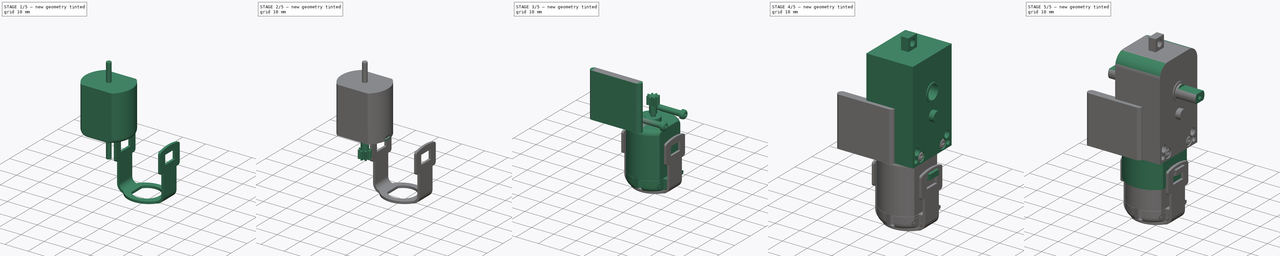
[diagram: build sequence overview — one tinted view per stage of 5, left to right]
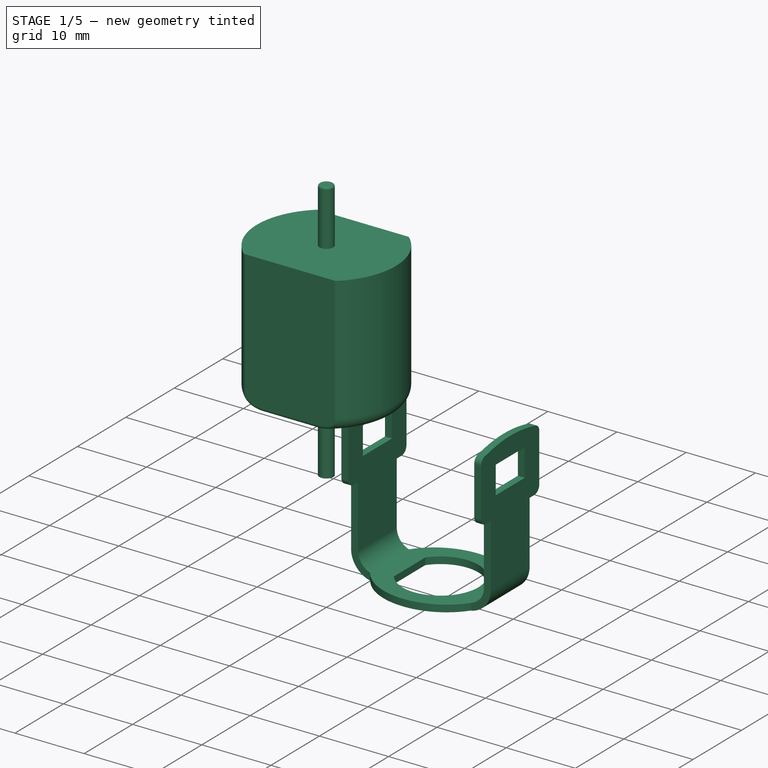
[diagram: stage 1 of 5 — iso view after this stage's code; geometry added in this stage tinted green]
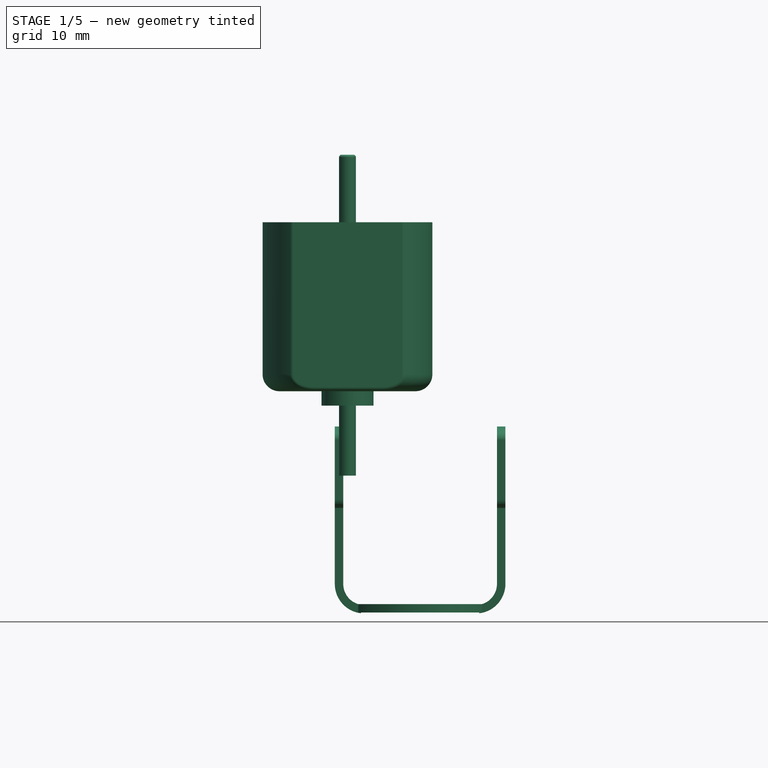
[diagram: stage 1 of 5 — front view after this stage's code; geometry added in this stage tinted green]
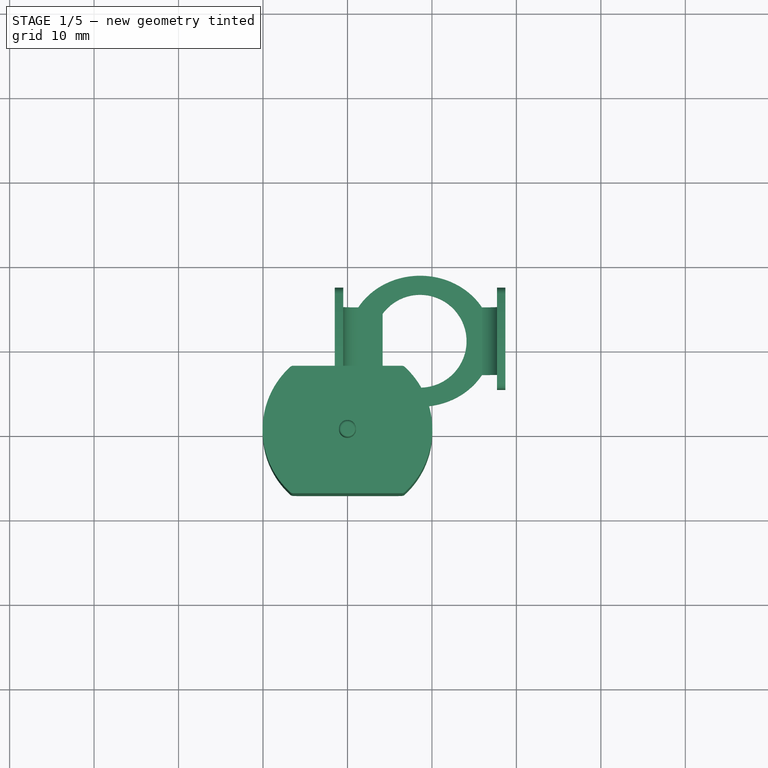
[diagram: stage 1 of 5 — top view after this stage's code; geometry added in this stage tinted green]
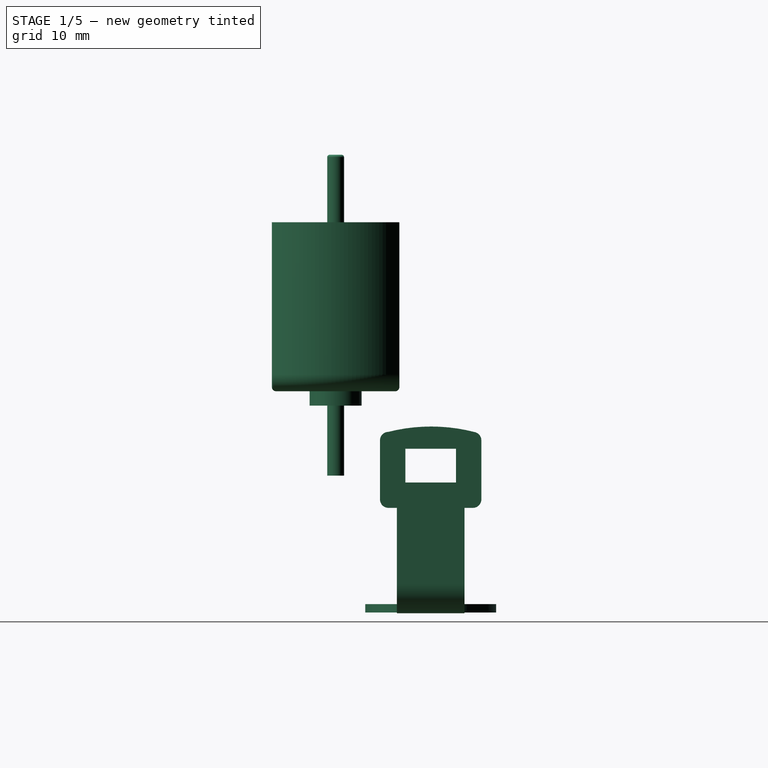
[diagram: stage 1 of 5 — right view after this stage's code; geometry added in this stage tinted green]
FCSTD DOCUMENT  (FreeCAD 0.15R4671 (Git))
Label: MontajePlasticGearMotorDC
License: CreativeCommons Attribution-ShareAlike
LicenseURL: http://creativecommons.org/licenses/by-sa/4.0/
objects: Part::Cut×35, Part::Box×24, Part::Cylinder×24, Part::MultiFuse×16, Part::FeaturePython×10, Sketcher::SketchObject×9, PartDesign::Pad×8, Part::Fillet×7, App::DocumentObjectGroup×5, Part::Thickness×3, Part::Mirroring×1, Part::Loft×1, Part::Part2DObjectPython×1
note: 147 computed .brp shape members not serialized (recipe doc carries the construction recipe); baked Part::Feature solids carry a one-line shape summary decoded from their .brp

FEATURE [Part::Cylinder] Cylinder017  label="Cilindro015"
  Angle = 360
  Height = 20
  Radius = 10.05
FEATURE [Part::Box] Box011  label="Cubo011"
  Height = 30
  Length = 30
  Placement = pos=(-15,7.55,-3) rot=(0,0,1;0rad)
  Width = 10
FEATURE [Part::Box] Box012  label="Cubo012"
  Height = 30
  Length = 30
  Placement = pos=(-15,-17.55,-3) rot=(0,0,1;0rad)
  Width = 10
FEATURE [Part::Fillet] Fillet002
  Base = -> Cylinder017
  Edges = 1 edges r=2: [Edge3]
FEATURE [Part::Cut] Cut019
  Base = -> Fillet002
  Tool = -> Box012
FEATURE [Part::Cut] Cut020  label="CuerpoBase"
  Base = -> Cut019
  Tool = -> Box011
FEATURE [Part::Thickness] Thickness002
  Intersection = false
  Join = 0
  Mode = 0
  Placement = pos=(0,0,24) rot=(1,0,0;3.14159rad)
  SelfIntersection = false
  Value = -0.1
FEATURE [Part::Cylinder] Cylinder021  label="preEje"
  Angle = 360
  Height = 38
  Placement = pos=(0,0,-10) rot=(0,0,1;0rad)
  Radius = 1
FEATURE [Part::Fillet] Fillet005  label="Eje"
  Base = -> Cylinder021
  Edges = 1 edges r=0.3: [Edge1]
FEATURE [Part::MultiFuse] Fusion008
  Shapes = -> [Cut020,Thickness002]
FEATURE [Part::Fillet] Fillet006  label="CuerpoMotor"
  Base = -> Fusion008
  Edges = 10 edges r=0.5: [Edge7,Edge11,Edge12,Edge14,Edge15,Edge16,Edge19,Edge21,Edge24,Edge25]
FEATURE [Part::MultiFuse] Fusion009
  Shapes = -> [Fillet006,Fillet005]
FEATURE [App::DocumentObjectGroup] Grupo005  label="GR_Motor"
  Group = -> [Fusion013]
FEATURE [Sketcher::SketchObject] Sketch006
  sketch-geometry (12):
    g0: LineSegment StartX=-10.1 StartY=0.787419 StartZ=0 EndX=-9.1 EndY=0.787419 EndZ=0
    g1: LineSegment StartX=-9.1 StartY=0.787419 StartZ=0 EndX=-9.1 EndY=-9.21258 EndZ=0
    g2: LineSegment StartX=-6.6 StartY=-11.7126 StartZ=0 EndX=6.6 EndY=-11.7126 EndZ=0
    g3: LineSegment StartX=9.1 StartY=-9.21258 StartZ=0 EndX=9.1 EndY=0.787419 EndZ=0
    g4: LineSegment StartX=9.1 StartY=0.787419 StartZ=0 EndX=10.1 EndY=0.787419 EndZ=0
    g5: LineSegment StartX=10.1 StartY=0.787419 StartZ=0 EndX=10.1 EndY=-9.21258 EndZ=0
    g6: LineSegment StartX=6.6 StartY=-12.7126 StartZ=0 EndX=-6.6 EndY=-12.7126 EndZ=0
    g7: LineSegment StartX=-10.1 StartY=-9.21258 StartZ=0 EndX=-10.1 EndY=0.787419 EndZ=0
    g8: ArcOfCircle CenterX=-6.6 CenterY=-9.21258 CenterZ=0 NormalX=0 NormalY=0 NormalZ=1 Radius=2.5 StartAngle=3.14159 EndAngle=4.71239
    g9: ArcOfCircle CenterX=-6.6 CenterY=-9.21258 CenterZ=0 NormalX=0 NormalY=0 NormalZ=1 Radius=3.5 StartAngle=3.14159 EndAngle=4.71239
    g10: ArcOfCircle CenterX=6.6 CenterY=-9.21258 CenterZ=0 NormalX=0 NormalY=0 NormalZ=1 Radius=2.5 StartAngle=4.71239 EndAngle=6.28319
    g11: ArcOfCircle CenterX=6.6 CenterY=-9.21258 CenterZ=0 NormalX=0 NormalY=0 NormalZ=1 Radius=3.5 StartAngle=4.71239 EndAngle=6.28319
  constraints (31):
    c: Coincident(g0,g1)
    c: Coincident(g3,g4)
    c: Coincident(g4,g5)
    c: Coincident(g7,g0)
    c: Horizontal(g0)
    c: Horizontal(g4)
    c: Vertical(g1)
    c: Vertical(g3)
    c: Parallel(g3,g5)
    c: Parallel(g2,g6)
    c: Parallel(g1,g7)
    c: Equal(g0,g4)
    c: DistanceX(g0) = 1
    c: Equal(g5,g7)
    c: Tangent(g1,g8) = -1.5708
    c: Tangent(g2,g8) = -1.5708
    c: Tangent(g7,g9) = 1.5708
    c: Tangent(g6,g9) = 1.5708
    c: Tangent(g3,g10) = -1.5708
    c: Tangent(g2,g10) = -1.5708
    c: Tangent(g5,g11) = 1.5708
    c: Tangent(g6,g11) = 1.5708
    c: DistanceX(g0,g3) = 18.2
    c: Horizontal(g2)
    c: Radius(g10) = 2.5
    c: Radius(g11) = 3.5
    c: Coincident(g11,g10)
    c: Equal(g10,g8)
    c: Equal(g11,g9)
    c: DistanceY(g0,g6) = -13.5
    c: Symmetric(g0,g3,g-2)
FEATURE [PartDesign::Pad] Pad005  label="Cinta"
  Length = 8
  Length2 = 100
  Sketch = -> Sketch006
  Type = 0
FEATURE [Sketcher::SketchObject] Sketch007
  Placement = pos=(0,0,0) rot=(0.57735,0.57735,0.57735;2.0944rad)
  sketch-geometry (12):
    g0: LineSegment StartX=-3.5 StartY=6 StartZ=0 EndX=3.5 EndY=6 EndZ=0
    g1: LineSegment StartX=3.5 StartY=-6 StartZ=0 EndX=-3.5 EndY=-6 EndZ=0
    g2: LineSegment StartX=-4.5 StartY=-5 StartZ=0 EndX=-4.5 EndY=5 EndZ=0
    g3: ArcOfCircle CenterX=-3.5 CenterY=5 CenterZ=0 NormalX=0 NormalY=0 NormalZ=1 Radius=1 StartAngle=1.5708 EndAngle=3.14159
    g4: ArcOfCircle CenterX=3.5 CenterY=5 CenterZ=0 NormalX=0 NormalY=0 NormalZ=1 Radius=1 StartAngle=0 EndAngle=1.5708
    g5: ArcOfCircle CenterX=3.5 CenterY=-5 CenterZ=0 NormalX=0 NormalY=0 NormalZ=1 Radius=1 StartAngle=4.71239 EndAngle=6.13416
    g6: ArcOfCircle CenterX=-3.5 CenterY=-5 CenterZ=0 NormalX=0 NormalY=0 NormalZ=1 Radius=1 StartAngle=3.14159 EndAngle=4.71239
    g7: LineSegment StartX=-1.5 StartY=3 StartZ=0 EndX=2.5 EndY=3 EndZ=0
    g8: LineSegment StartX=2.5 StartY=3 StartZ=0 EndX=2.5 EndY=-3 EndZ=0
    g9: LineSegment StartX=2.5 StartY=-3 StartZ=0 EndX=-1.5 EndY=-3 EndZ=0
    g10: LineSegment StartX=-1.5 StartY=-3 StartZ=0 EndX=-1.5 EndY=3 EndZ=0
    g11: ArcOfCircle CenterX=-15.422 CenterY=-0.0524846 CenterZ=0 NormalX=0 NormalY=0 NormalZ=1 Radius=20.5527 StartAngle=6.03262 EndAngle=6.53156
  constraints (31):
    c: Horizontal(g0)
    c: Horizontal(g1)
    c: Vertical(g2)
    c: Tangent(g2,g3) = 1.5708
    c: Tangent(g0,g3) = 1.5708
    c: Tangent(g0,g4) = 1.5708
    c: Tangent(g2,g6) = 1.5708
    c: Tangent(g1,g6) = 1.5708
    c: Equal(g6,g5)
    c: Equal(g5,g4)
    c: Equal(g4,g3)
    c: Radius(g3) = 1
    c: Symmetric(g3,g4,g-2)
    c: Symmetric(g4,g5,g-1)
    c: Coincident(g7,g8)
    c: Coincident(g8,g9)
    c: Coincident(g9,g10)
    c: Coincident(g10,g7)
    c: Horizontal(g7)
    c: Horizontal(g9)
    c: Vertical(g8)
    c: Vertical(g10)
    c: DistanceY(g8) = -6
    c: DistanceX(g7) = 4
    c: Symmetric(g7,g8,g-1)
    c: Coincident(g11,g5)
    c: Coincident(g11,g4)
    c: Radius(g11) = 20.5527
    c: DistanceX(g4,g2) = -9
    c: DistanceY(g0,g1) = -12
    c: Coincident(g1,g5)
FEATURE [PartDesign::Pad] Pad006  label="Enganche"
  Length = 1
  Length2 = 100
  Placement = pos=(0,0,0) rot=(0.57735,0.57735,0.57735;2.0944rad)
  Sketch = -> Sketch007
  Type = 0
FEATURE [Part::FeaturePython] Clone007  label="Clone of Cinta"  # Draft clone (typed FeaturePython)
  Objects = -> [Pad005]
  Placement = pos=(0,4,0) rot=(1,0,0;1.5708rad)
  Scale = (1,1,1)
FEATURE [Part::FeaturePython] Clone008  label="Clone of Enganche"  # Draft clone (typed FeaturePython)
  Objects = -> [Pad006]
  Placement = pos=(-10.1,0,4.29) rot=(0.707107,0,0.707107;3.14159rad)
  Scale = (1,1,1)
FEATURE [Part::FeaturePython] Clone009  label="Clone of Enganche001"  # Draft clone (typed FeaturePython)
  Objects = -> [Pad006]
  Placement = pos=(9.1,0,4.29) rot=(0.707107,0,0.707107;3.14159rad)
  Scale = (1,1,1)
FEATURE [Part::MultiFuse] Fusion014
  Shapes = -> [Clone007,Clone008,Clone009]
FEATURE [Sketcher::SketchObject] Sketch008
  Placement = pos=(0,0,-12.6) rot=(0,0,1;3.14159rad)
  sketch-geometry (7):
    g0: Ellipse CenterX=0 CenterY=0 CenterZ=0 NormalX=0 NormalY=0 NormalZ=1 MajorRadius=8.55052 MinorRadius=7.75 AngleXU=0
    g1: LineSegment [constr] StartX=8.55052 StartY=0 StartZ=0 EndX=-8.55052 EndY=0 EndZ=0
    g2: LineSegment [constr] StartX=0 StartY=7.75 StartZ=0 EndX=0 EndY=-7.75 EndZ=0
    g3: GeomPoint [constr] X=3.61233 Y=0 Z=0
    g4: GeomPoint [constr] X=-3.61233 Y=0 Z=0
    g5: ArcOfCircle CenterX=0 CenterY=0 CenterZ=0 NormalX=0 NormalY=0 NormalZ=1 Radius=5.5 StartAngle=0.629868 EndAngle=5.65332
    g6: LineSegment StartX=4.44458 StartY=3.23971 StartZ=0 EndX=4.44458 EndY=-3.23971 EndZ=0
  constraints (9):
    c: InternalAlignment(g1-g4 -> g0) x4
    c: DistanceY(g2,g2) = -15.5
    c: Coincident(g0,g-1)
    c: PointOnObject(g2,g-2)
    c: Radius(g5) = 5.5
    c: Vertical(g6)
    c: Coincident(g5,g6)
    c: Coincident(g5,g6)
    c: Coincident(g5,g-1)
FEATURE [PartDesign::Pad] Pad007  label="Base"
  Length = 1
  Length2 = 100
  Placement = pos=(0,0,-12.6) rot=(0,0,1;3.14159rad)
  Sketch = -> Sketch008
  Type = 0
FEATURE [Part::Box] Box021  label="Cubo021"
  Height = 10
  Length = 10
  Placement = pos=(7.4,-10,-16) rot=(0,0,1;0rad)
  Width = 20
FEATURE [Part::Box] Box022  label="Cubo022"
  Height = 10
  Length = 10
  Placement = pos=(-17.4,-10,-16) rot=(0,0,1;0rad)
  Width = 20
FEATURE [Part::Box] Box023  label="Cubo023"
  Height = 10
  Length = 14
  Placement = pos=(-7,-10,-16) rot=(0,0,1;0rad)
  Width = 20
FEATURE [Part::Cut] Cut032
  Base = -> Fusion014
  Tool = -> Box023
FEATURE [Part::Cut] Cut033
  Base = -> Pad007
  Tool = -> Box022
FEATURE [Part::Cut] Cut034
  Base = -> Cut033
  Tool = -> Box021
FEATURE [Part::MultiFuse] Fusion015  label="Brida"
  Placement = pos=(8.6,11.25,-13.6) rot=(0,0,1;0rad)
  Shapes = -> [Cut032,Cut034]
FEATURE [App::DocumentObjectGroup] Grupo006  label="GR_AuxBrida"
  Group = -> [Pad005,Pad006]
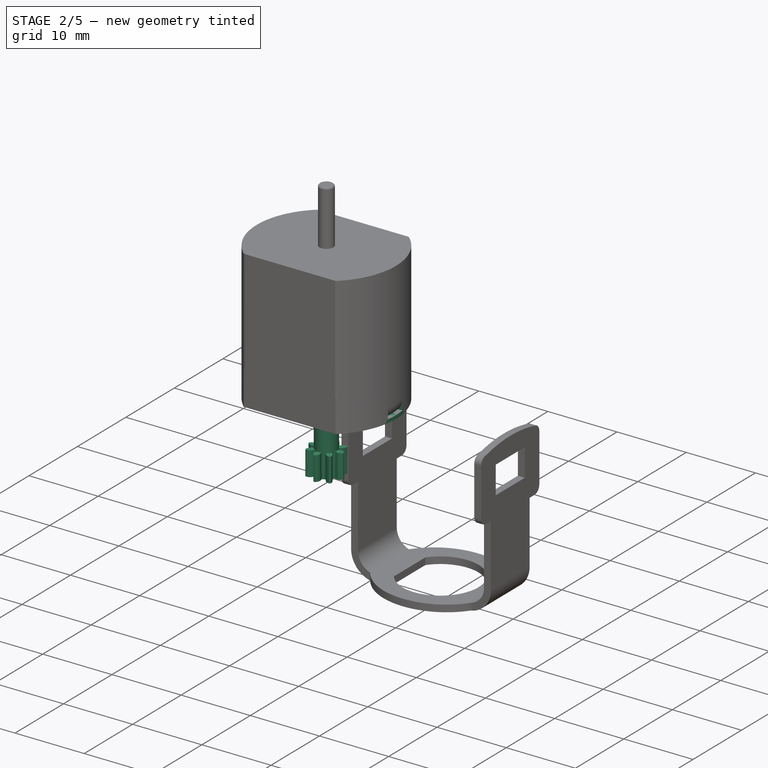
[diagram: stage 2 of 5 — iso view after this stage's code; geometry added in this stage tinted green]
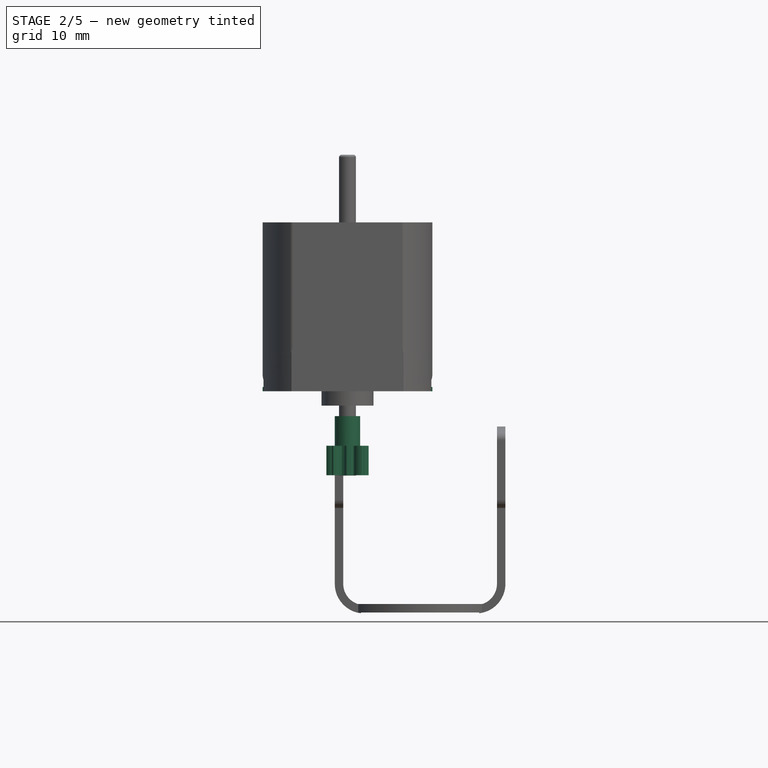
[diagram: stage 2 of 5 — front view after this stage's code; geometry added in this stage tinted green]
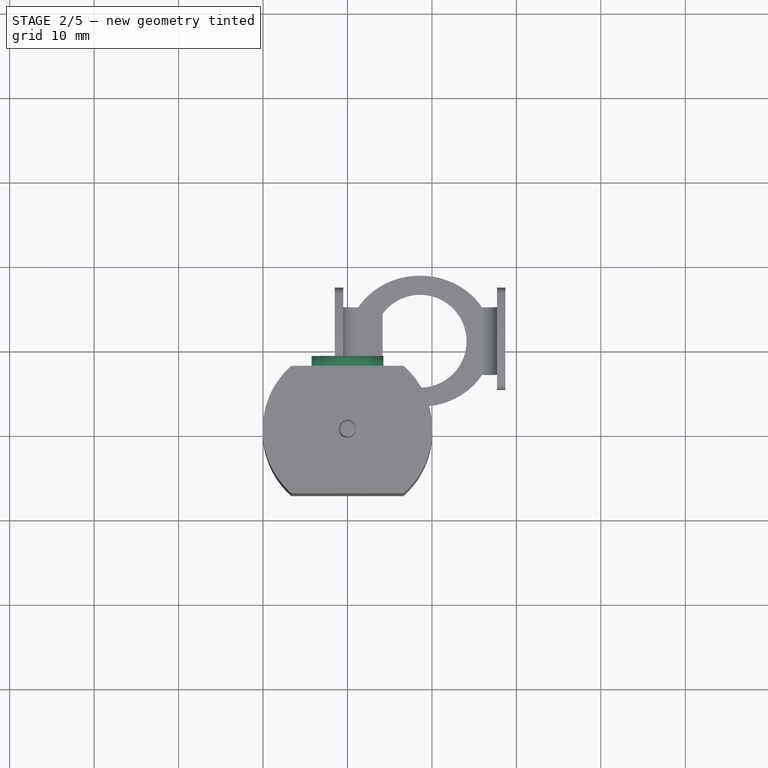
[diagram: stage 2 of 5 — top view after this stage's code; geometry added in this stage tinted green]
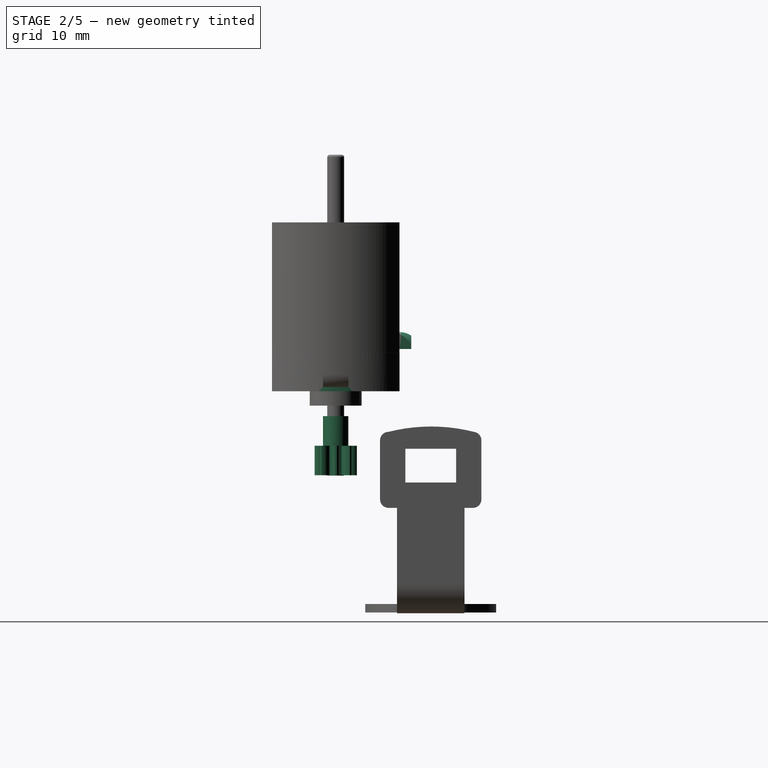
[diagram: stage 2 of 5 — right view after this stage's code; geometry added in this stage tinted green]
FEATURE [Part::Cylinder] Cylinder019  label="Cilindro017"
  Angle = 360
  Height = 7
  Radius = 10.05
FEATURE [Part::Box] Box015  label="Cubo015"
  Height = 30
  Length = 30
  Placement = pos=(-15,7.55,-3) rot=(0,0,1;0rad)
  Width = 10
FEATURE [Part::Box] Box016  label="Cubo016"
  Height = 30
  Length = 30
  Placement = pos=(-15,-17.55,-3) rot=(0,0,1;0rad)
  Width = 10
FEATURE [Part::Fillet] Fillet004
  Base = -> Cylinder019
  Edges = 1 edges r=2.5: [Edge1]
FEATURE [Part::Cylinder] Cylinder020  label="Cilindro018"
  Angle = 360
  Height = 3.3
  Radius = 5
FEATURE [Part::Box] Box017  label="Cubo017"
  Height = 44
  Length = 8.5
  Placement = pos=(-4.25,6.55,-4) rot=(0,0,1;0rad)
  Width = 2.4
FEATURE [Part::Cut] Cut023
  Base = -> Box015
  Placement = pos=(0,0,-12) rot=(0,0,1;0rad)
  Tool = -> Box017
FEATURE [Part::Cut] Cut024
  Base = -> Fillet004
  Tool = -> Cut023
FEATURE [Part::Cut] Cut025
  Base = -> Cut024
  Tool = -> Box016
FEATURE [Part::Box] Box018  label="Cubo018"
  Height = 30
  Length = 30
  Placement = pos=(-15,7.55,-25) rot=(0,0,1;0rad)
  Width = 10
FEATURE [Part::Cut] Cut026
  Base = -> Cut025
  Tool = -> Box018
FEATURE [Part::Box] Box019  label="Cubo019"
  Height = 2
  Length = 2
  Placement = pos=(-1,7.6,3.5) rot=(0,0,1;0rad)
  Width = 2
FEATURE [Part::Cut] Cut027
  Base = -> Cut026
  Tool = -> Box019
FEATURE [Part::Box] Box020  label="Cubo020"
  Height = 10
  Length = 20
  Placement = pos=(-10,-14,-3) rot=(0,0,1;0rad)
  Width = 10
FEATURE [Part::Cut] Cut028  label="parteFinal001"
  Base = -> Cylinder020
  Placement = pos=(0,0,6) rot=(0,0,1;0rad)
  Tool = -> Box020
FEATURE [Sketcher::SketchObject] Sketch005
  sketch-geometry (4):
    g0: ArcOfCircle CenterX=-10 CenterY=0 CenterZ=0 NormalX=0 NormalY=0 NormalZ=1 Radius=1.5 StartAngle=1.5708 EndAngle=4.71239
    g1: ArcOfCircle CenterX=10 CenterY=0 CenterZ=0 NormalX=0 NormalY=0 NormalZ=1 Radius=1.5 StartAngle=4.71239 EndAngle=7.85398
    g2: LineSegment StartX=-10 StartY=-1.5 StartZ=0 EndX=10 EndY=-1.5 EndZ=0
    g3: LineSegment StartX=-10 StartY=1.5 StartZ=0 EndX=10 EndY=1.5 EndZ=0
  constraints (10):
    c: Tangent(g0,g3) = 1.5708
    c: Tangent(g0,g2) = -1.5708
    c: Tangent(g2,g1) = -1.5708
    c: Tangent(g3,g1) = 1.5708
    c: Horizontal(g2)
    c: Equal(g0,g1)
    c: PointOnObject(g0,g-1)
    c: Symmetric(g0,g1,g-2)
    c: Radius(g0) = 1.5
    c: DistanceX(g0,g1) = 20
FEATURE [PartDesign::Pad] Pad003
  Length = 20
  Length2 = 100
  Sketch = -> Sketch005
  Type = 0
FEATURE [App::DocumentObjectGroup] Grupo002  label="GR_AuxMotor"
  Group = -> [Pad001,Pad002,Pad003]
FEATURE [Part::FeaturePython] Clone005  label="Clone of Pad003"  # Draft clone (typed FeaturePython)
  Objects = -> [Pad003]
  Placement = pos=(-18,0,0.5) rot=(0,0,1;0rad)
  Scale = (1,1,1)
FEATURE [Part::FeaturePython] Clone006  label="Clone of Pad004"  # Draft clone (typed FeaturePython)
  Objects = -> [Pad003]
  Placement = pos=(18,0,0.5) rot=(0,0,1;0rad)
  Scale = (1,1,1)
FEATURE [Part::Cut] Cut029
  Base = -> Cut027
  Tool = -> Clone005
FEATURE [Part::Cut] Cut030  label="preTapa001"
  Base = -> Cut029
  Tool = -> Clone006
FEATURE [Part::Part2DObjectPython] InvoluteGear  # Draft 2D object (typed FeaturePython)
  ExternalGear = true
  HighPrecision = true
  Modules = 0.5
  NumberOfTeeth = 8
  PressureAngle = 20
FEATURE [PartDesign::Pad] Pad004
  Length = 3.5
  Length2 = 100
  Sketch = -> InvoluteGear
  Type = 0
FEATURE [Part::Cylinder] Cylinder022  label="Cilindro019"
  Angle = 360
  Height = 3.5
  Placement = pos=(0,0,3.5) rot=(0,0,1;0rad)
  Radius = 1.5
FEATURE [Part::MultiFuse] Fusion007  label="RDentada"
  Placement = pos=(0,0,-9.95) rot=(0,0,1;0rad)
  Shapes = -> [Pad004,Cylinder022]
FEATURE [Part::Cylinder] Cylinder023  label="Cilindro020"
  Angle = 360
  Height = 1.6
  Placement = pos=(0,0,-1.7) rot=(0,0,1;0rad)
  Radius = 2.95
FEATURE [Part::MultiFuse] Fusion011
  Shapes = -> [Fusion009,Fusion007]
FEATURE [Part::MultiFuse] Fusion012  label="CuerpoMotorUnion"
  Shapes = -> [Fusion011,Cylinder023]
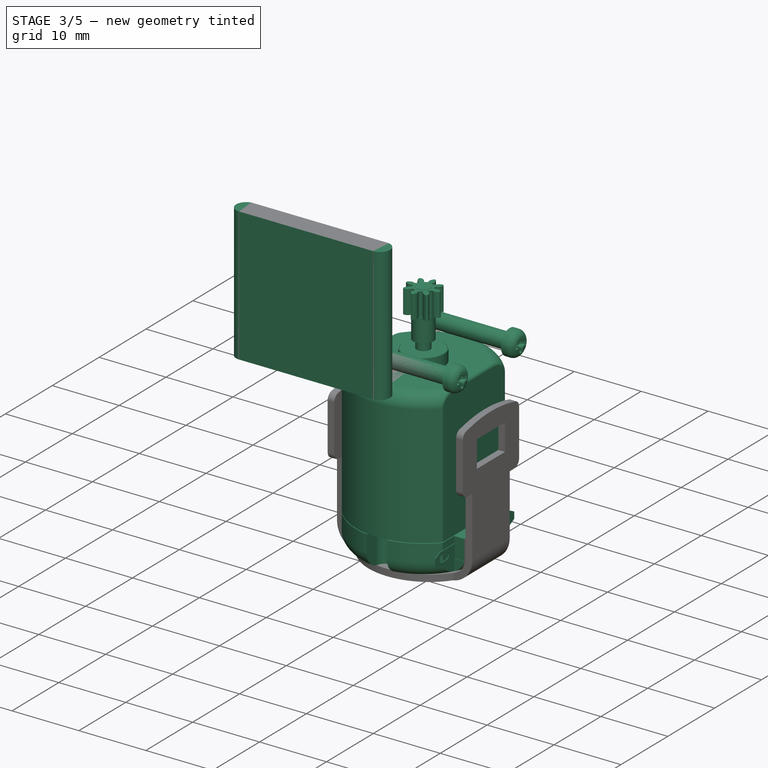
[diagram: stage 3 of 5 — iso view after this stage's code; geometry added in this stage tinted green]
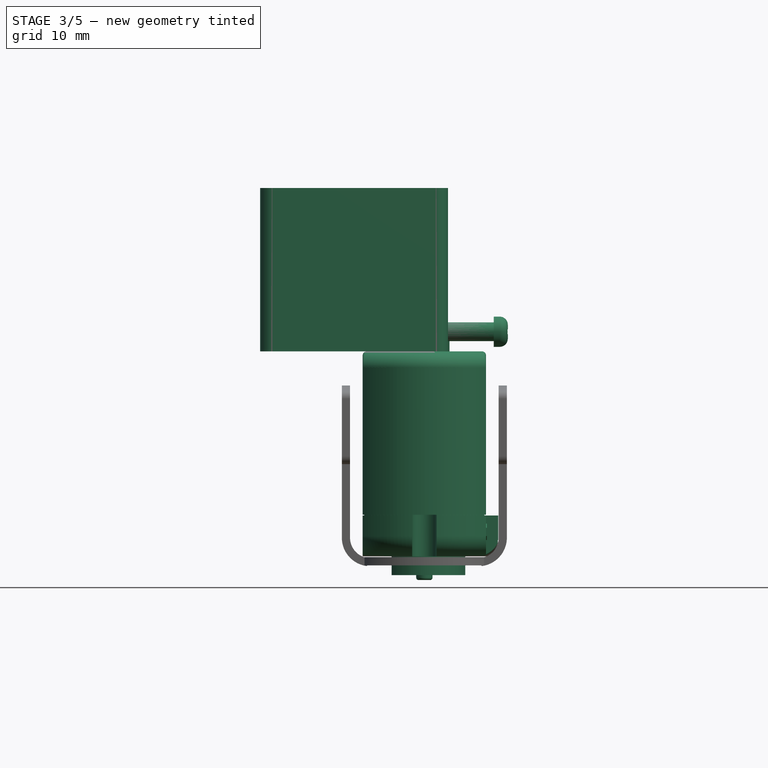
[diagram: stage 3 of 5 — front view after this stage's code; geometry added in this stage tinted green]
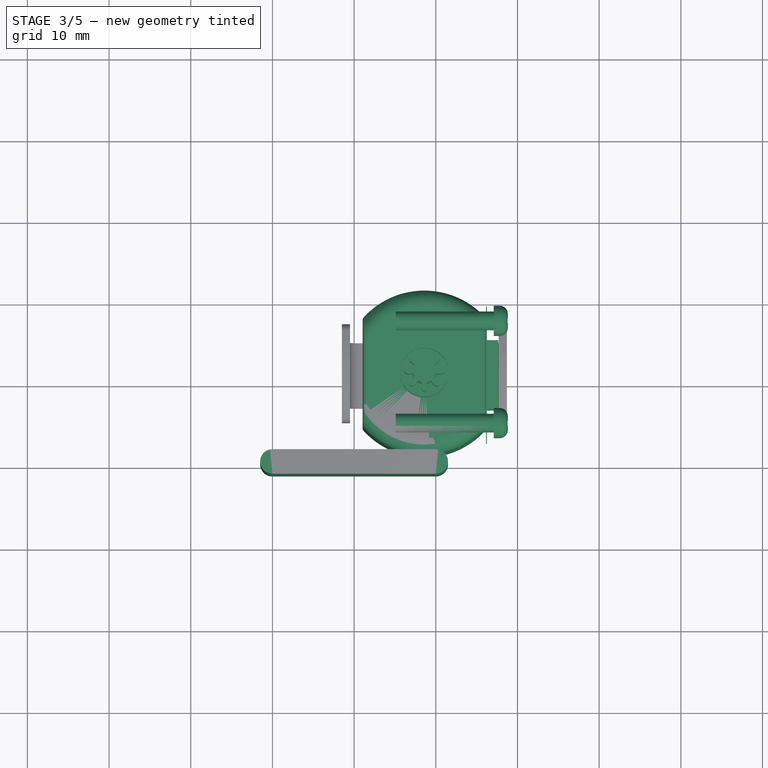
[diagram: stage 3 of 5 — top view after this stage's code; geometry added in this stage tinted green]
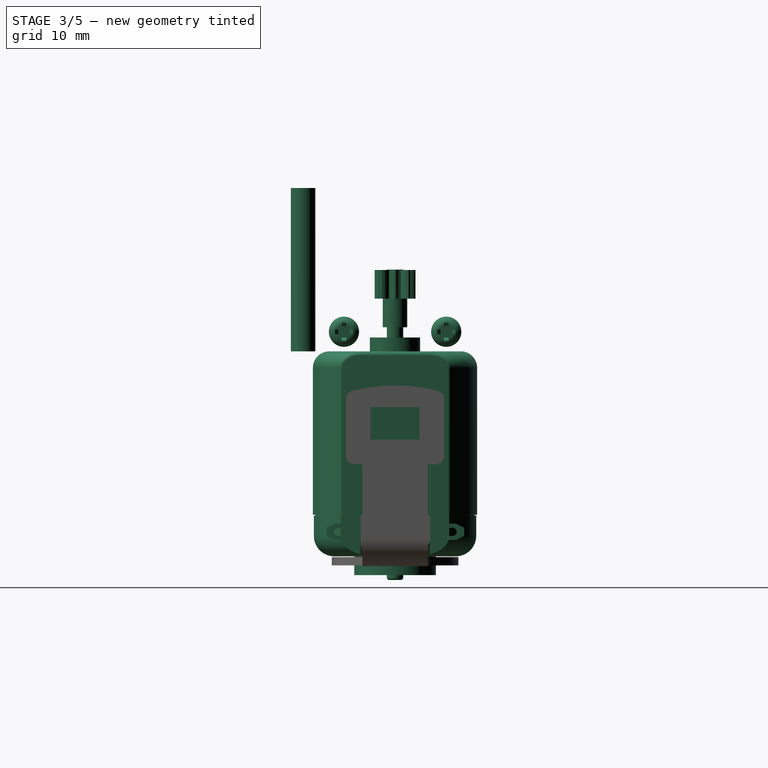
[diagram: stage 3 of 5 — right view after this stage's code; geometry added in this stage tinted green]
FEATURE [Part::Cylinder] Cylinder015  label="Vastago"
  Angle = 360
  Height = 12
  Placement = pos=(0,-11,0) rot=(0,1,0;1.5708rad)
  Radius = 1.15
FEATURE [Part::Cylinder] Cylinder016  label="Cilindro014"
  Angle = 360
  Height = 1.72
  Placement = pos=(12,-11,0) rot=(0,1,0;1.5708rad)
  Radius = 1.85
FEATURE [Part::Fillet] Fillet001
  Base = -> Cylinder016
  Edges = 1 edges r=1: [Edge1]
FEATURE [Sketcher::SketchObject] Sketch001
  Placement = pos=(1.2,0,0) rot=(0.57735,0.57735,0.57735;2.0944rad)
  sketch-geometry (16):
    g0: LineSegment StartX=-1.2 StartY=-0.287691 StartZ=0 EndX=-0.587692 EndY=-0.287691 EndZ=0
    g1: LineSegment StartX=-0.287691 StartY=-0.587692 StartZ=0 EndX=-0.287691 EndY=-1.2 EndZ=0
    g2: LineSegment StartX=-0.287691 StartY=-1.2 StartZ=0 EndX=0.287691 EndY=-1.2 EndZ=0
    g3: LineSegment StartX=0.287691 StartY=-1.2 StartZ=0 EndX=0.287691 EndY=-0.587692 EndZ=0
    g4: LineSegment StartX=0.587692 StartY=-0.287691 StartZ=0 EndX=1.2 EndY=-0.287691 EndZ=0
    g5: LineSegment StartX=1.2 StartY=-0.287691 StartZ=0 EndX=1.2 EndY=0.287691 EndZ=0
    g6: LineSegment StartX=1.2 StartY=0.287691 StartZ=0 EndX=0.587692 EndY=0.287691 EndZ=0
    g7: LineSegment StartX=0.287691 StartY=0.587692 StartZ=0 EndX=0.287691 EndY=1.2 EndZ=0
    g8: LineSegment StartX=0.287691 StartY=1.2 StartZ=0 EndX=-0.287691 EndY=1.2 EndZ=0
    g9: LineSegment StartX=-0.287691 StartY=1.2 StartZ=0 EndX=-0.287691 EndY=0.587692 EndZ=0
    g10: LineSegment StartX=-0.587692 StartY=0.287691 StartZ=0 EndX=-1.2 EndY=0.287691 EndZ=0
    g11: LineSegment StartX=-1.2 StartY=0.287691 StartZ=0 EndX=-1.2 EndY=-0.287691 EndZ=0
    g12: ArcOfCircle CenterX=-0.587692 CenterY=0.587692 CenterZ=0 NormalX=0 NormalY=0 NormalZ=1 Radius=0.3 StartAngle=4.71239 EndAngle=6.28319
    g13: ArcOfCircle CenterX=0.587692 CenterY=0.587692 CenterZ=0 NormalX=0 NormalY=0 NormalZ=1 Radius=0.3 StartAngle=3.14159 EndAngle=4.71239
    g14: ArcOfCircle CenterX=0.587692 CenterY=-0.587692 CenterZ=0 NormalX=0 NormalY=0 NormalZ=1 Radius=0.3 StartAngle=1.5708 EndAngle=3.14159
    g15: ArcOfCircle CenterX=-0.587692 CenterY=-0.587692 CenterZ=0 NormalX=0 NormalY=0 NormalZ=1 Radius=0.3 StartAngle=0 EndAngle=1.5708
  constraints (45):
    c: Coincident(g1,g2)
    c: Coincident(g2,g3)
    c: Coincident(g4,g5)
    c: Coincident(g5,g6)
    c: Coincident(g7,g8)
    c: Coincident(g8,g9)
    c: Coincident(g10,g11)
    c: Coincident(g11,g0)
    c: Horizontal(g8)
    c: Horizontal(g0)
    c: Horizontal(g10)
    c: Horizontal(g6)
    c: Horizontal(g2)
    c: Vertical(g9)
    c: Vertical(g7)
    c: Vertical(g5)
    c: Vertical(g3)
    c: Vertical(g1)
    c: Vertical(g11)
    c: Equal(g9,g10)
    c: Equal(g10,g7)
    c: Equal(g7,g6)
    c: Equal(g6,g0)
    c: Equal(g0,g1)
    c: Equal(g1,g3)
    c: Equal(g3,g4)
    c: DistanceX(g0,g4) = 2.4
    c: DistanceY(g7,g2) = -2.4
    c: Equal(g2,g8)
    c: Equal(g8,g5)
    c: Equal(g5,g11)
    c: DistanceY(g11) = -0.575383
    c: Tangent(g10,g12) = 1.5708
    c: Tangent(g9,g12) = 1.5708
    c: Tangent(g7,g13) = 1.5708
    c: Tangent(g6,g13) = 1.5708
    c: Tangent(g4,g14) = 1.5708
    c: Tangent(g3,g14) = 1.5708
    c: Tangent(g0,g15) = 1.5708
    c: Tangent(g1,g15) = 1.5708
    c: Equal(g12,g13)
    c: Equal(g13,g14)
    c: Symmetric(g12,g14,g-1)
    c: Symmetric(g13,g15,g-1)
    c: Radius(g12) = 0.3
FEATURE [Sketcher::SketchObject] Sketch002
  Placement = pos=(0,0,0) rot=(0.57735,0.57735,0.57735;2.0944rad)
  sketch-geometry (16):
    g0: LineSegment StartX=-0.7 StartY=-0.287691 StartZ=0 EndX=-0.587692 EndY=-0.287691 EndZ=0
    g1: LineSegment StartX=-0.287691 StartY=-0.587692 StartZ=0 EndX=-0.287691 EndY=-0.7 EndZ=0
    g2: LineSegment StartX=-0.287691 StartY=-0.7 StartZ=0 EndX=0.287691 EndY=-0.7 EndZ=0
    g3: LineSegment StartX=0.287691 StartY=-0.7 StartZ=0 EndX=0.287691 EndY=-0.587692 EndZ=0
    g4: LineSegment StartX=0.587692 StartY=-0.287691 StartZ=0 EndX=0.7 EndY=-0.287691 EndZ=0
    g5: LineSegment StartX=0.7 StartY=-0.287691 StartZ=0 EndX=0.7 EndY=0.287691 EndZ=0
    g6: LineSegment StartX=0.7 StartY=0.287691 StartZ=0 EndX=0.587692 EndY=0.287691 EndZ=0
    g7: LineSegment StartX=0.287691 StartY=0.587692 StartZ=0 EndX=0.287691 EndY=0.7 EndZ=0
    g8: LineSegment StartX=0.287691 StartY=0.7 StartZ=0 EndX=-0.287691 EndY=0.7 EndZ=0
    g9: LineSegment StartX=-0.287691 StartY=0.7 StartZ=0 EndX=-0.287691 EndY=0.587692 EndZ=0
    g10: LineSegment StartX=-0.587692 StartY=0.287691 StartZ=0 EndX=-0.7 EndY=0.287691 EndZ=0
    g11: LineSegment StartX=-0.7 StartY=0.287691 StartZ=0 EndX=-0.7 EndY=-0.287691 EndZ=0
    g12: ArcOfCircle CenterX=-0.587692 CenterY=0.587692 CenterZ=0 NormalX=0 NormalY=0 NormalZ=1 Radius=0.3 StartAngle=4.71239 EndAngle=6.28319
    g13: ArcOfCircle CenterX=0.587692 CenterY=0.587692 CenterZ=0 NormalX=0 NormalY=0 NormalZ=1 Radius=0.3 StartAngle=3.14159 EndAngle=4.71239
    g14: ArcOfCircle CenterX=0.587692 CenterY=-0.587692 CenterZ=0 NormalX=0 NormalY=0 NormalZ=1 Radius=0.3 StartAngle=1.5708 EndAngle=3.14159
    g15: ArcOfCircle CenterX=-0.587692 CenterY=-0.587692 CenterZ=0 NormalX=0 NormalY=0 NormalZ=1 Radius=0.3 StartAngle=0 EndAngle=1.5708
  constraints (45):
    c: Coincident(g1,g2)
    c: Coincident(g2,g3)
    c: Coincident(g4,g5)
    c: Coincident(g5,g6)
    c: Coincident(g7,g8)
    c: Coincident(g8,g9)
    c: Coincident(g10,g11)
    c: Coincident(g11,g0)
    c: Horizontal(g8)
    c: Horizontal(g0)
    c: Horizontal(g10)
    c: Horizontal(g6)
    c: Horizontal(g2)
    c: Vertical(g9)
    c: Vertical(g7)
    c: Vertical(g5)
    c: Vertical(g3)
    c: Vertical(g1)
    c: Vertical(g11)
    c: Equal(g9,g10)
    c: Equal(g10,g7)
    c: Equal(g7,g6)
    c: Equal(g6,g0)
    c: Equal(g0,g1)
    c: Equal(g1,g3)
    c: Equal(g3,g4)
    c: DistanceX(g0,g4) = 1.4
    c: DistanceY(g7,g2) = -1.4
    c: Equal(g2,g8)
    c: Equal(g8,g5)
    c: Equal(g5,g11)
    c: DistanceY(g11) = -0.575383
    c: Tangent(g10,g12) = 1.5708
    c: Tangent(g9,g12) = 1.5708
    c: Tangent(g7,g13) = 1.5708
    c: Tangent(g6,g13) = 1.5708
    c: Tangent(g4,g14) = 1.5708
    c: Tangent(g3,g14) = 1.5708
    c: Tangent(g0,g15) = 1.5708
    c: Tangent(g1,g15) = 1.5708
    c: Equal(g12,g13)
    c: Equal(g13,g14)
    c: Symmetric(g12,g14,g-1)
    c: Symmetric(g13,g15,g-1)
    c: Radius(g12) = 0.3
FEATURE [Part::Loft] Loft
  Closed = false
  Placement = pos=(12.72,-11,0) rot=(0,0,1;0rad)
  Ruled = false
  Sections = -> [Sketch001,Sketch002]
  Solid = true
FEATURE [Part::Cut] Cut018  label="Cabeza_tornillo"
  Base = -> Fillet001
  Tool = -> Loft
FEATURE [Part::MultiFuse] Fusion003  label="Tornillo"
  Placement = pos=(6.8,15.98,2) rot=(0,0,1;0rad)
  Shapes = -> [Cut018,Cylinder015]
FEATURE [App::DocumentObjectGroup] Grupo  label="GR_AuxCarcasa"
  Group = -> [Pad,Fusion003]
FEATURE [Part::FeaturePython] Clone002  label="Clone of Tornillo"  # Draft clone (typed FeaturePython)
  Objects = -> [Fusion003]
  Placement = pos=(5.1,16,2.4) rot=(0,0,1;0rad)
  Scale = (1,1,1)
FEATURE [Part::FeaturePython] Clone003  label="Clone of Tornillo001"  # Draft clone (typed FeaturePython)
  Objects = -> [Fusion003]
  Placement = pos=(5.1,28.52,2.4) rot=(0,0,1;0rad)
  Scale = (1,1,1)
FEATURE [App::DocumentObjectGroup] Grupo001  label="GR_Carcasa"
  Group = -> [Fusion004]
FEATURE [Part::Box] Box009  label="Cubo009"
  Height = 3
  Length = 8.5
  Placement = pos=(-4.25,7.55,2) rot=(0,0,1;0rad)
  Width = 1.5
FEATURE [Part::Box] Box010  label="Cubo010"
  Height = 2
  Length = 1.9
  Placement = pos=(-1,7.6,3.5) rot=(0,0,1;0rad)
  Width = 1.4
FEATURE [Part::MultiFuse] Fusion005  label="SujetaCon"
  Placement = pos=(0.05,0,18) rot=(0,0,1;0rad)
  Shapes = -> [Box009,Box010]
FEATURE [Sketcher::SketchObject] Sketch003
  Placement = pos=(0,0,0) rot=(1,0,0;1.5708rad)
  sketch-geometry (16):
    g0: LineSegment StartX=-7.41153 StartY=1 StartZ=0 EndX=7.41153 EndY=1 EndZ=0
    g1: LineSegment StartX=8.41153 StartY=0.5 StartZ=0 EndX=8.41153 EndY=-0.5 EndZ=0
    g2: LineSegment StartX=7.41153 StartY=-1 StartZ=0 EndX=-7.41153 EndY=-1 EndZ=0
    g3: LineSegment StartX=-8.41153 StartY=-0.5 StartZ=0 EndX=-8.41153 EndY=0.5 EndZ=0
    g4: ArcOfCircle CenterX=-7 CenterY=0 CenterZ=0 NormalX=0 NormalY=0 NormalZ=1 Radius=0.5 StartAngle=1.5708 EndAngle=4.71239
    g5: ArcOfCircle CenterX=-6 CenterY=0 CenterZ=0 NormalX=0 NormalY=0 NormalZ=1 Radius=0.5 StartAngle=4.71239 EndAngle=7.85398
    g6: LineSegment StartX=-7 StartY=-0.5 StartZ=0 EndX=-6 EndY=-0.5 EndZ=0
    g7: LineSegment StartX=-7 StartY=0.5 StartZ=0 EndX=-6 EndY=0.5 EndZ=0
    g8: ArcOfCircle CenterX=6 CenterY=0 CenterZ=0 NormalX=0 NormalY=0 NormalZ=1 Radius=0.5 StartAngle=1.5708 EndAngle=4.71239
    g9: ArcOfCircle CenterX=7 CenterY=0 CenterZ=0 NormalX=0 NormalY=0 NormalZ=1 Radius=0.5 StartAngle=4.71239 EndAngle=7.85398
    g10: LineSegment StartX=6 StartY=-0.5 StartZ=0 EndX=7 EndY=-0.5 EndZ=0
    g11: LineSegment StartX=6 StartY=0.5 StartZ=0 EndX=7 EndY=0.5 EndZ=0
    g12: LineSegment StartX=-8.41153 StartY=-0.5 StartZ=0 EndX=-7.41153 EndY=-1 EndZ=0
    g13: LineSegment StartX=-8.41153 StartY=0.5 StartZ=0 EndX=-7.41153 EndY=1 EndZ=0
    g14: LineSegment StartX=7.41153 StartY=1 StartZ=0 EndX=8.41153 EndY=0.5 EndZ=0
    g15: LineSegment StartX=8.41153 StartY=-0.5 StartZ=0 EndX=7.41153 EndY=-1 EndZ=0
  constraints (39):
    c: Horizontal(g0)
    c: Horizontal(g2)
    c: Vertical(g1)
    c: Tangent(g4,g7) = 1.5708
    c: Tangent(g4,g6) = -1.5708
    c: Tangent(g6,g5) = -1.5708
    c: Tangent(g7,g5) = 1.5708
    c: Horizontal(g6)
    c: Equal(g4,g5)
    c: PointOnObject(g4,g-1)
    c: Radius(g4) = 0.5
    c: DistanceX(g4,g5) = 1
    c: Tangent(g8,g11) = 1.5708
    c: Tangent(g8,g10) = -1.5708
    c: Tangent(g10,g9) = -1.5708
    c: Tangent(g11,g9) = 1.5708
    c: Horizontal(g10)
    c: Equal(g8,g9)
    c: Equal(g9,g4)
    c: Symmetric(g9,g4,g-2)
    c: Symmetric(g8,g5,g-2)
    c: PointOnObject(g3,g13)
    c: Coincident(g0,g13)
    c: PointOnObject(g2,g12)
    c: Coincident(g3,g13)
    c: Coincident(g2,g12)
    c: Coincident(g3,g12)
    c: DistanceY(g3) = 1
    c: Symmetric(g3,g3,g-1)
    c: Symmetric(g0,g2,g-1)
    c: DistanceX(g3,g2) = 1
    c: Coincident(g0,g14)
    c: Coincident(g1,g14)
    c: Coincident(g1,g15)
    c: Coincident(g2,g15)
    c: Symmetric(g0,g0,g-2)
    c: Symmetric(g3,g1,g-2)
    c: Symmetric(g3,g1,g-2)
    c: Symmetric(g2,g2,g-2)
FEATURE [PartDesign::Pad] Pad001  label="Conector"
  Length = 0.1
  Length2 = 100
  Placement = pos=(0,0,0) rot=(1,0,0;1.5708rad)
  Sketch = -> Sketch003
  Type = 0
FEATURE [Part::FeaturePython] Clone004  label="Clone of Conector"  # Draft clone (typed FeaturePython)
  Objects = -> [Pad001]
  Placement = pos=(0.05,7.65,22) rot=(1,0,0;1.5708rad)
  Scale = (1,1,1)
FEATURE [Sketcher::SketchObject] Sketch004
  sketch-geometry (4):
    g0: ArcOfCircle CenterX=-10 CenterY=0 CenterZ=0 NormalX=0 NormalY=0 NormalZ=1 Radius=1.5 StartAngle=1.5708 EndAngle=4.71239
    g1: ArcOfCircle CenterX=10 CenterY=0 CenterZ=0 NormalX=0 NormalY=0 NormalZ=1 Radius=1.5 StartAngle=4.71239 EndAngle=7.85398
    g2: LineSegment StartX=-10 StartY=-1.5 StartZ=0 EndX=10 EndY=-1.5 EndZ=0
    g3: LineSegment StartX=-10 StartY=1.5 StartZ=0 EndX=10 EndY=1.5 EndZ=0
  constraints (10):
    c: Tangent(g0,g3) = 1.5708
    c: Tangent(g0,g2) = -1.5708
    c: Tangent(g2,g1) = -1.5708
    c: Tangent(g3,g1) = 1.5708
    c: Horizontal(g2)
    c: Equal(g0,g1)
    c: PointOnObject(g0,g-1)
    c: Symmetric(g0,g1,g-2)
    c: Radius(g0) = 1.5
    c: DistanceX(g0,g1) = 20
FEATURE [PartDesign::Pad] Pad002
  Length = 20
  Length2 = 100
  Sketch = -> Sketch004
  Type = 0
FEATURE [Part::Cylinder] Cylinder018  label="Cilindro016"
  Angle = 360
  Height = 20
  Radius = 10.05
FEATURE [Part::Box] Box013  label="Cubo013"
  Height = 30
  Length = 30
  Placement = pos=(-15,7.55,-3) rot=(0,0,1;0rad)
  Width = 10
FEATURE [Part::Box] Box014  label="Cubo014"
  Height = 30
  Length = 30
  Placement = pos=(-15,-17.55,-3) rot=(0,0,1;0rad)
  Width = 10
FEATURE [Part::Fillet] Fillet003
  Base = -> Cylinder018
  Edges = 1 edges r=2: [Edge3]
FEATURE [Part::Cut] Cut021
  Base = -> Fillet003
  Tool = -> Box014
FEATURE [Part::Cut] Cut022
  Base = -> Cut021
  Tool = -> Box013
FEATURE [Part::Thickness] Thickness001
  Faces = -> Cut022 [Face6]
  Intersection = false
  Join = 0
  Mode = 0
  SelfIntersection = false
  Value = -0.2
FEATURE [Part::MultiFuse] Fusion006  label="Tapa001"
  Placement = pos=(0,0,18) rot=(0,0,1;0rad)
  Shapes = -> [Cut030,Cut028]
FEATURE [Part::Cut] Cut031  label="TapaMotor"
  Base = -> Fusion006
  Tool = -> Thickness001
FEATURE [Part::MultiFuse] Fusion010  label="TapaMotorUnion"
  Placement = pos=(0,0,0.1) rot=(0,0,1;0rad)
  Shapes = -> [Cut031,Clone004,Fusion005]
FEATURE [Part::MultiFuse] Fusion013
  Placement = pos=(8.6,11.25,0) rot=(0.707107,0.707107,0;3.14159rad)
  Shapes = -> [Fusion012,Fusion010]
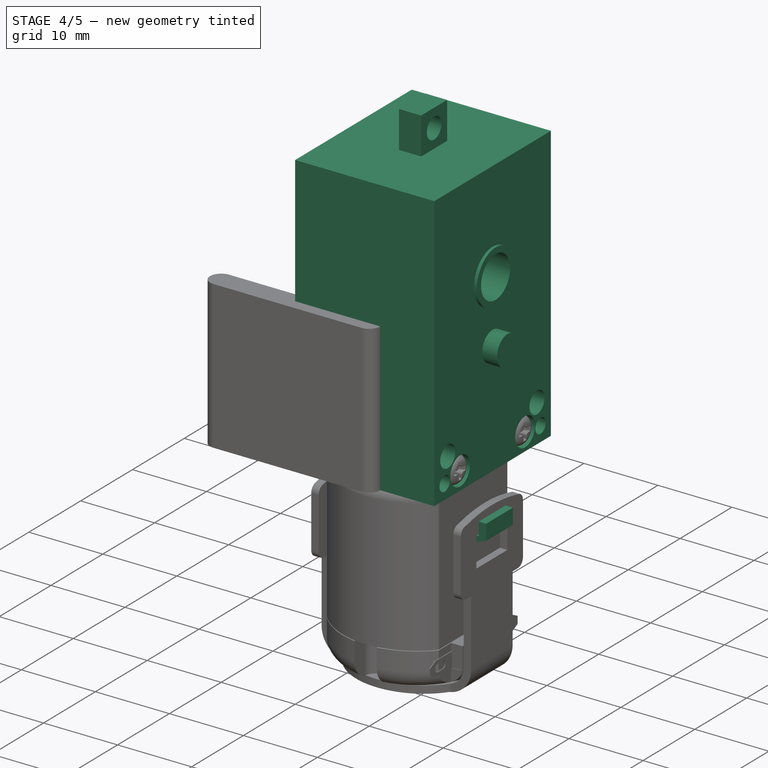
[diagram: stage 4 of 5 — iso view after this stage's code; geometry added in this stage tinted green]
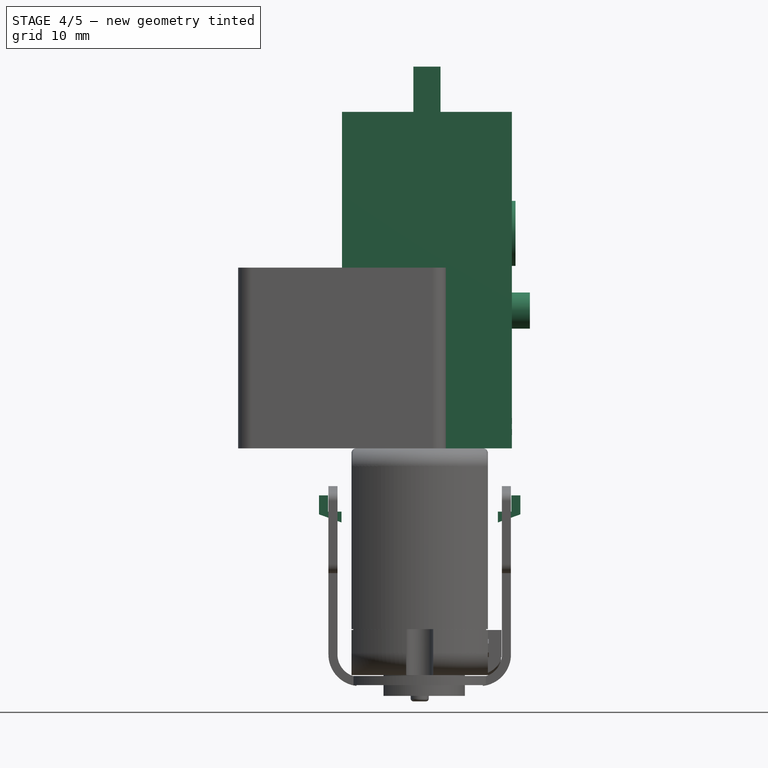
[diagram: stage 4 of 5 — front view after this stage's code; geometry added in this stage tinted green]
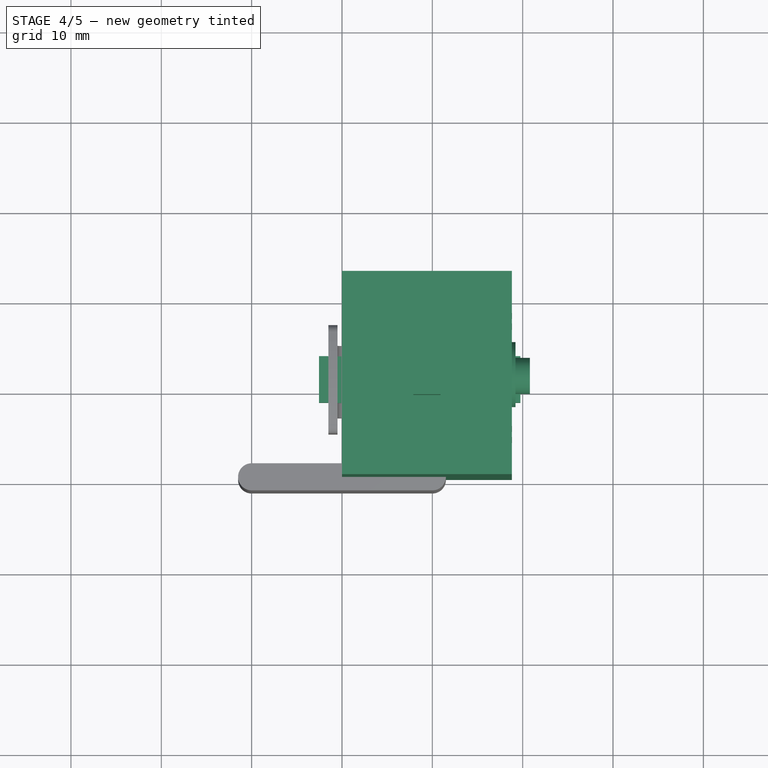
[diagram: stage 4 of 5 — top view after this stage's code; geometry added in this stage tinted green]
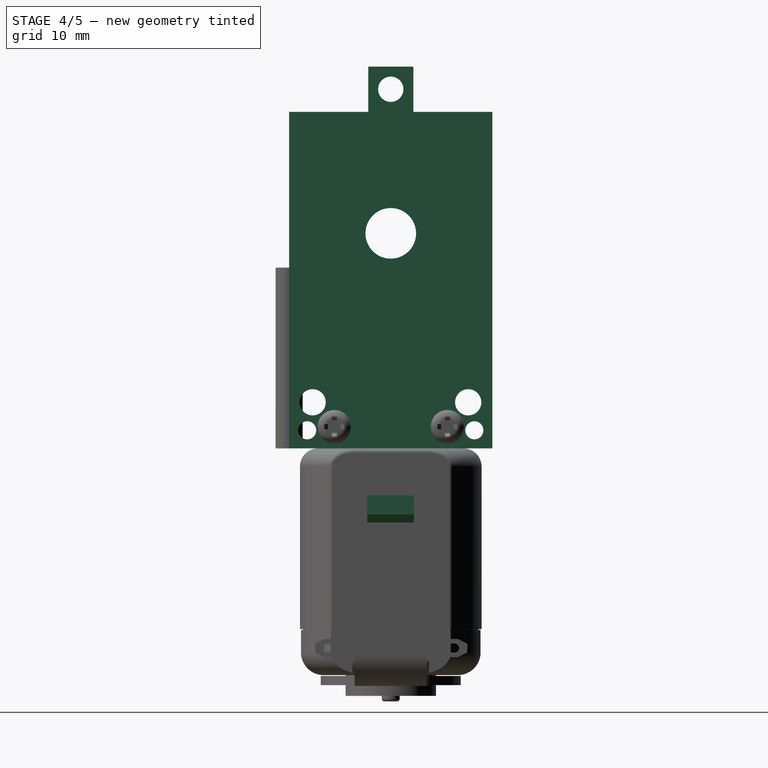
[diagram: stage 4 of 5 — right view after this stage's code; geometry added in this stage tinted green]
FEATURE [Part::Box] Box  label="Cubo001"
  Height = 5
  Length = 3
  Placement = pos=(-16,0,0) rot=(0,0,1;0rad)
  Width = 5
FEATURE [Part::Cylinder] Cylinder  label="Cilindro"
  Angle = 360
  Height = 10
  Placement = pos=(-20,2.5,2.5) rot=(0,1,0;1.5708rad)
  Radius = 1.4
FEATURE [Part::Box] Box004  label="Cubo"
  Height = 37.25
  Length = 18.8
  Width = 22.5
FEATURE [Part::Cylinder] Cylinder002  label="Cilindro003"
  Angle = 360
  Height = 2
  Placement = pos=(18.8,11.25,15.25) rot=(0,1,0;1.5708rad)
  Radius = 2
FEATURE [Part::Cylinder] Cylinder003  label="Cilindro002"
  Angle = 360
  Height = 0.4
  Placement = pos=(18.8,11.25,23.8) rot=(0,1,0;1.5708rad)
  Radius = 3.6
FEATURE [Part::Cylinder] Cylinder004  label="Cilindro001"
  Angle = 360
  Height = 30
  Placement = pos=(-6,11.25,23.8) rot=(0,1,0;1.5708rad)
  Radius = 2.8
FEATURE [Part::Cut] Cut002
  Base = -> Box
  Placement = pos=(23.9,8.75,37.25) rot=(0,0,1;0rad)
  Tool = -> Cylinder
FEATURE [Sketcher::SketchObject] Sketch
  Placement = pos=(8.6,13.8,-7) rot=(1,0,0;1.5708rad)
  sketch-geometry (6):
    g0: LineSegment StartX=8.65 StartY=0 StartZ=0 EndX=10.15 EndY=0 EndZ=0
    g1: LineSegment StartX=10.15 StartY=0 StartZ=0 EndX=10.15 EndY=1.8 EndZ=0
    g2: LineSegment StartX=10.15 StartY=1.8 StartZ=0 EndX=11.15 EndY=1.8 EndZ=0
    g3: LineSegment StartX=11.15 StartY=1.8 StartZ=0 EndX=11.15 EndY=-0.3 EndZ=0
    g4: LineSegment StartX=11.15 StartY=-0.3 StartZ=0 EndX=8.65 EndY=-1.2 EndZ=0
    g5: LineSegment StartX=8.65 StartY=-1.2 StartZ=0 EndX=8.65 EndY=0 EndZ=0
  constraints (18):
    c: Coincident(g0,g1)
    c: Coincident(g1,g2)
    c: Coincident(g2,g3)
    c: Coincident(g3,g4)
    c: Coincident(g4,g5)
    c: Coincident(g5,g0)
    c: Horizontal(g0)
    c: Horizontal(g2)
    c: Vertical(g5)
    c: Vertical(g3)
    c: DistanceY(g3) = -2.1
    c: DistanceY(g2,g4) = -3
    c: DistanceX(g2,g0) = -2.5
    c: Vertical(g1)
    c: DistanceX(g2) = 1
    c: DistanceY(g1) = 1.8
    c: DistanceX(g-1,g0) = 8.65
    c: PointOnObject(g0,g-1)
FEATURE [PartDesign::Pad] Pad  label="Sujeccion"
  Length = 5.15
  Length2 = 100
  Placement = pos=(8.6,13.8,-7) rot=(1,0,0;1.5708rad)
  Sketch = -> Sketch
  Type = 0
FEATURE [Part::FeaturePython] Clone  label="Clone of Sujeccion1"  # Draft clone (typed FeaturePython)
  Objects = -> [Pad]
  Placement = pos=(8.6,13.8,-7) rot=(1,0,0;1.5708rad)
  Scale = (1,1,1)
FEATURE [Part::FeaturePython] Clone001  label="Clone of Sujeccion2"  # Draft clone (typed FeaturePython)
  Objects = -> [Pad]
  Placement = pos=(8.6,13.8,-7) rot=(1,0,0;1.5708rad)
  Scale = (1,1,1)
FEATURE [Part::Mirroring] Part__Mirroring  label="Clone of Sujeccion2 (Mirror #1)"
  Base = (0,0,0)
  Normal = (1,0,0)
  Placement = pos=(17.2,0,0) rot=(0,0,1;0rad)
  Source = -> Clone001
FEATURE [Part::Cylinder] Cylinder005  label="Cilindro005"
  Angle = 360
  Height = 25
  Placement = pos=(-5,2.6,5.1) rot=(0,1,0;1.5708rad)
  Radius = 1.45
FEATURE [Part::Cylinder] Cylinder006  label="Cilindro006"
  Angle = 360
  Height = 25
  Placement = pos=(-5,19.82,5.1) rot=(0,1,0;1.5708rad)
  Radius = 1.45
FEATURE [Part::Cut] Cut004
  Base = -> Box004
  Tool = -> Cylinder005
FEATURE [Part::Cut] Cut005
  Base = -> Cut004
  Tool = -> Cylinder006
FEATURE [Part::Cylinder] Cylinder007  label="Tala_Tornillo1"
  Angle = 360
  Height = 25
  Placement = pos=(1,5,2.4) rot=(0,1,0;1.5708rad)
  Radius = 1.9
FEATURE [Part::Cylinder] Cylinder008  label="Tala_Tornillo2"
  Angle = 360
  Height = 25
  Placement = pos=(2,17.52,2.4) rot=(0,1,0;1.5708rad)
  Radius = 1.9
FEATURE [Part::Cut] Cut006
  Base = -> Cut005
  Tool = -> Cylinder007
FEATURE [Part::Cut] Cut007
  Base = -> Cut006
  Tool = -> Cylinder008
FEATURE [Part::Cylinder] Cylinder009  label="Cilindro007"
  Angle = 360
  Height = 25
  Placement = pos=(-3,2,2) rot=(0,1,0;1.5708rad)
  Radius = 1
FEATURE [Part::Cylinder] Cylinder010  label="Cilindro008"
  Angle = 360
  Height = 25
  Placement = pos=(-3,20.5,2) rot=(0,1,0;1.5708rad)
  Radius = 1
FEATURE [Part::Cut] Cut008
  Base = -> Cut007
  Tool = -> Cylinder009
FEATURE [Part::Cut] Cut009  label="carca"
  Base = -> Cut008
  Tool = -> Cylinder010
FEATURE [Part::MultiFuse] Fusion001
  Shapes = -> [Cut009,Cylinder003,Cylinder002,Cut002]
FEATURE [Part::Cut] Cut010
  Base = -> Fusion001
  Tool = -> Cylinder004
FEATURE [Part::Cylinder] Cylinder014  label="Cilindro012"
  Angle = 360
  Height = 10
  Placement = pos=(8.6,11.25,-1) rot=(0,0,1;0rad)
  Radius = 3
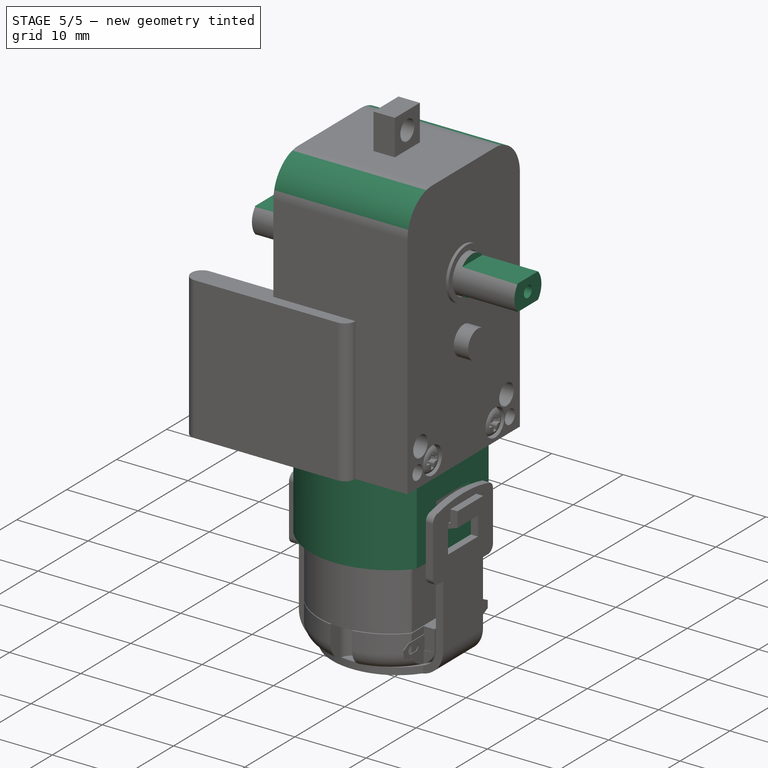
[diagram: stage 5 of 5 — iso view after this stage's code; geometry added in this stage tinted green]
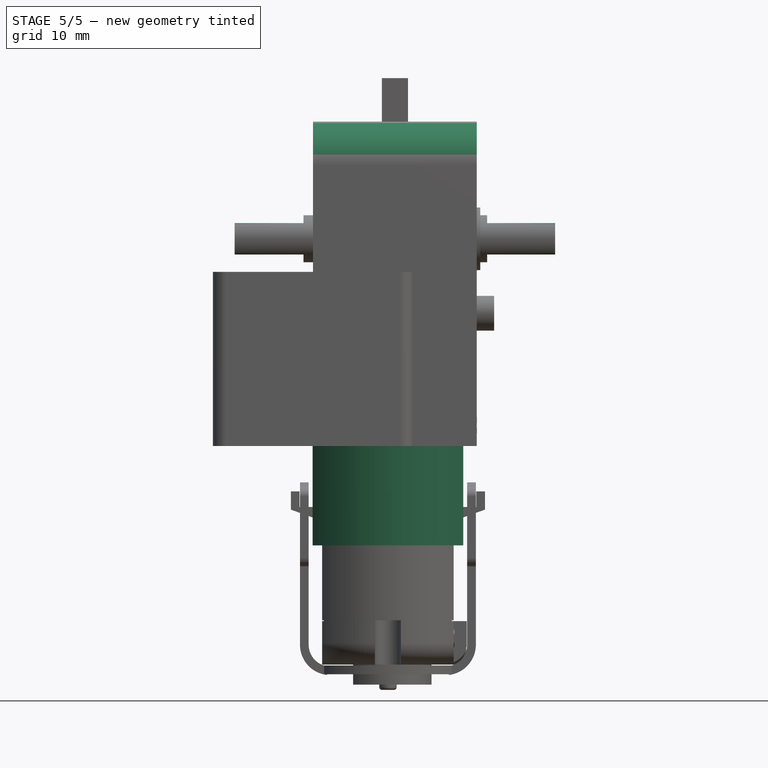
[diagram: stage 5 of 5 — front view after this stage's code; geometry added in this stage tinted green]
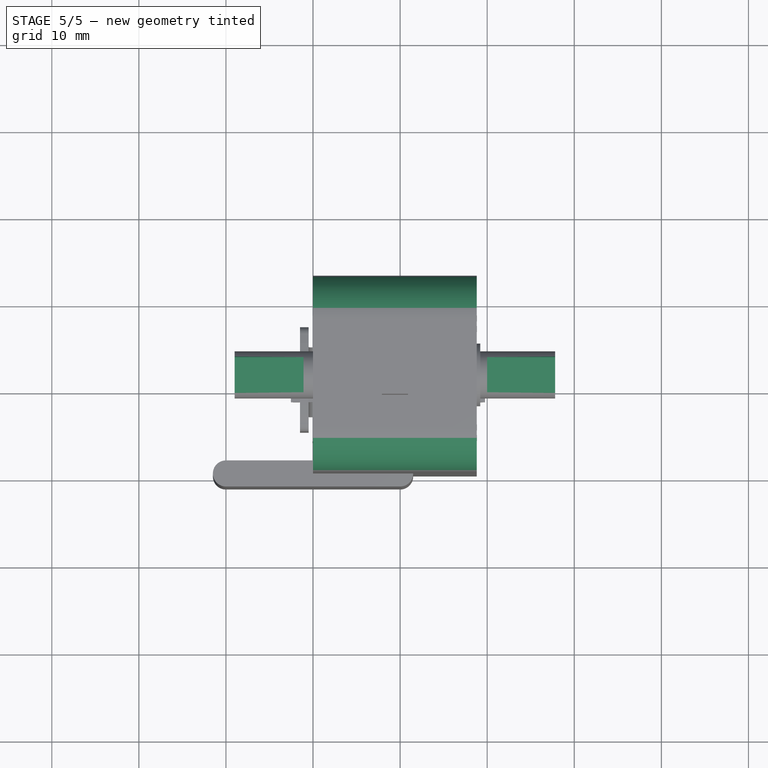
[diagram: stage 5 of 5 — top view after this stage's code; geometry added in this stage tinted green]
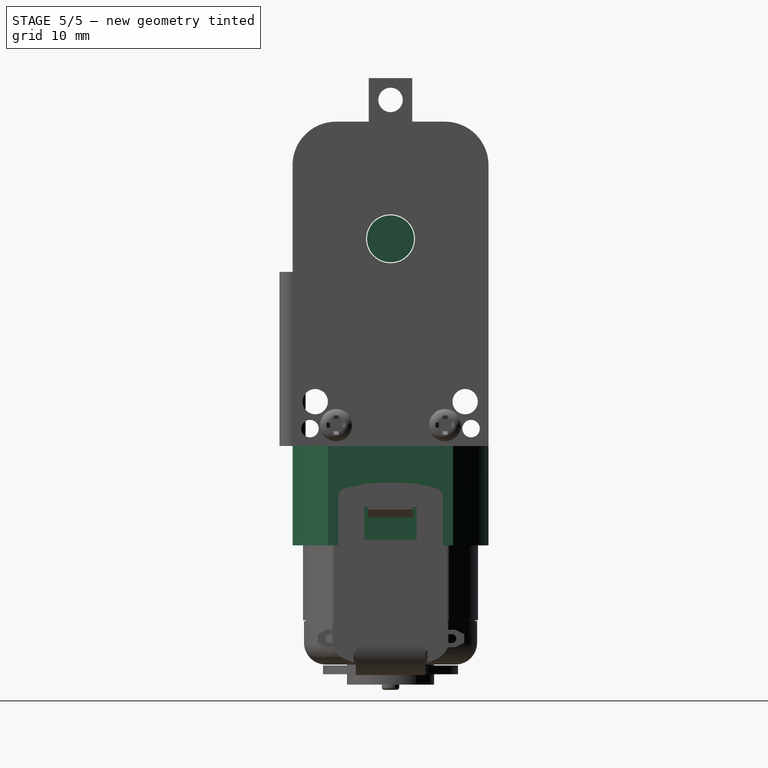
[diagram: stage 5 of 5 — right view after this stage's code; geometry added in this stage tinted green]
FEATURE [Part::Cylinder] Cylinder001  label="Cilindro004"
  Angle = 360
  Height = 11.4
  Placement = pos=(9.4,11.25,-11.4) rot=(0,0,1;0rad)
  Radius = 11.25
FEATURE [Part::Box] Box001  label="Cubo002"
  Height = 22
  Length = 10
  Placement = pos=(-9.25,0,-17) rot=(0,0,1;0rad)
  Width = 20
FEATURE [Part::Box] Box002  label="Cubo003"
  Height = 22
  Length = 10
  Placement = pos=(18.05,0,-17) rot=(0,0,1;0rad)
  Width = 20
FEATURE [Part::Cut] Cut
  Base = -> Cylinder001
  Tool = -> Box001
FEATURE [Part::Cut] Cut001
  Base = -> Cut
  Placement = pos=(-0.8,0,0) rot=(0,0,1;0rad)
  Tool = -> Box002
FEATURE [Part::Box] Box003  label="Cubo004"
  Height = 2.7
  Length = 50
  Placement = pos=(-15,7.95,-7) rot=(0,0,1;0rad)
  Width = 6.6
FEATURE [Part::Thickness] Thickness
  Faces = -> Cut001 [Face6,Face1]
  Intersection = false
  Join = 0
  Mode = 0
  SelfIntersection = false
  Value = -1
FEATURE [Part::Cut] Cut003
  Base = -> Thickness
  Tool = -> Box003
FEATURE [Part::MultiFuse] Fusion
  Shapes = -> [Cut003,Part__Mirroring,Clone]
FEATURE [Part::MultiFuse] Fusion002
  Shapes = -> [Fusion,Cut010]
FEATURE [Part::Fillet] Fillet  label="preCarcasa"
  Base = -> Fusion002
  Edges = 2 edges r=5: [Edge79,Edge92]
FEATURE [Part::Cylinder] Cylinder011  label="Cilindro009"
  Angle = 360
  Height = 36.8
  Placement = pos=(0,0,0) rot=(0,1,0;1.5708rad)
  Radius = 2.7
FEATURE [Part::Box] Box005  label="Cubo005"
  Height = 10
  Length = 8
  Placement = pos=(-0.1,-5,1.8) rot=(0,0,1;0rad)
  Width = 10
FEATURE [Part::Box] Box006  label="Cubo006"
  Height = 10
  Length = 8
  Placement = pos=(-0.1,-5,-11.8) rot=(0,0,1;0rad)
  Width = 10
FEATURE [Part::Box] Box007  label="Cubo007"
  Height = 10
  Length = 8
  Placement = pos=(29,-5,1.8) rot=(0,0,1;0rad)
  Width = 10
FEATURE [Part::Box] Box008  label="Cubo008"
  Height = 10
  Length = 8
  Placement = pos=(29,-5,-11.8) rot=(0,0,1;0rad)
  Width = 10
FEATURE [Part::Cut] Cut011
  Base = -> Cylinder011
  Tool = -> Box005
FEATURE [Part::Cut] Cut012
  Base = -> Cut011
  Tool = -> Box006
FEATURE [Part::Cut] Cut013
  Base = -> Cut012
  Tool = -> Box007
FEATURE [Part::Cut] Cut014
  Base = -> Cut013
  Tool = -> Box008
FEATURE [Part::Cylinder] Cylinder012  label="Cilindro010"
  Angle = 360
  Height = 10
  Placement = pos=(-2,0,0) rot=(0,1,0;1.5708rad)
  Radius = 0.8
FEATURE [Part::Cylinder] Cylinder013  label="Cilindro011"
  Angle = 360
  Height = 10
  Placement = pos=(28.8,0,0) rot=(0,1,0;1.5708rad)
  Radius = 0.8
FEATURE [Part::Cut] Cut015
  Base = -> Cut014
  Tool = -> Cylinder012
FEATURE [Part::Cut] Cut016  label="EjeMotor"
  Base = -> Cut015
  Placement = pos=(-9,11.25,23.8) rot=(0,0,1;0rad)
  Tool = -> Cylinder013
FEATURE [Part::Cut] Cut017  label="Carcasa"
  Base = -> Fillet
  Tool = -> Cylinder014
FEATURE [Part::MultiFuse] Fusion004  label="CarcasaUnion"
  Shapes = -> [Cut016,Clone002,Clone003,Cut017]
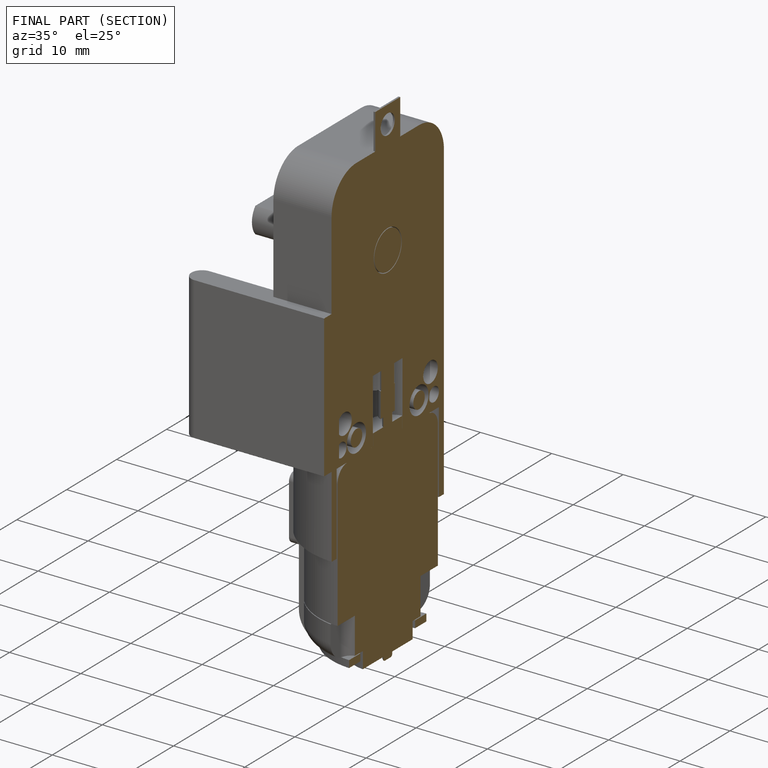
[diagram: finished part — half-section view (interior)]
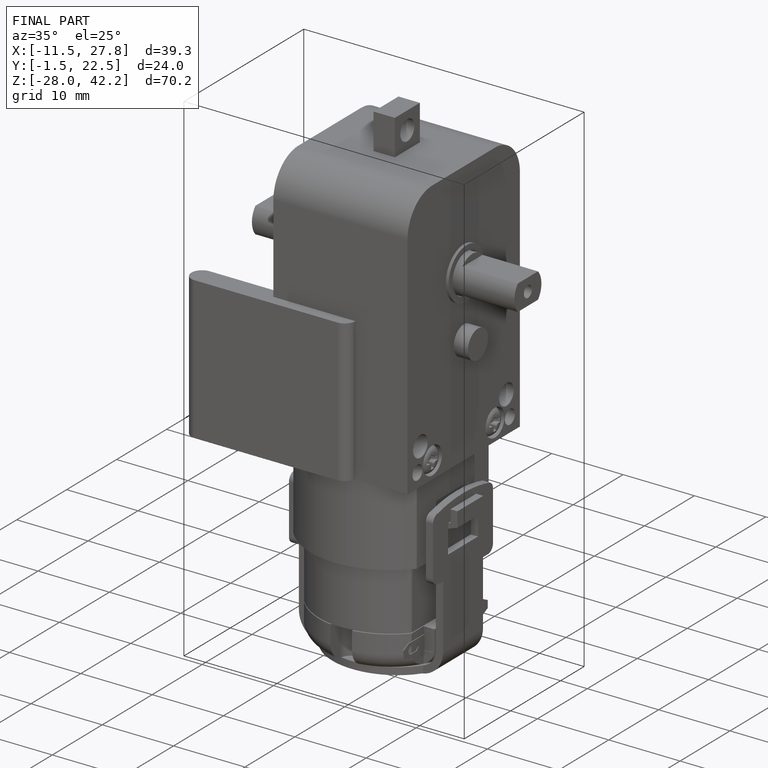
[diagram: finished part — iso view with bounding-box wireframe]
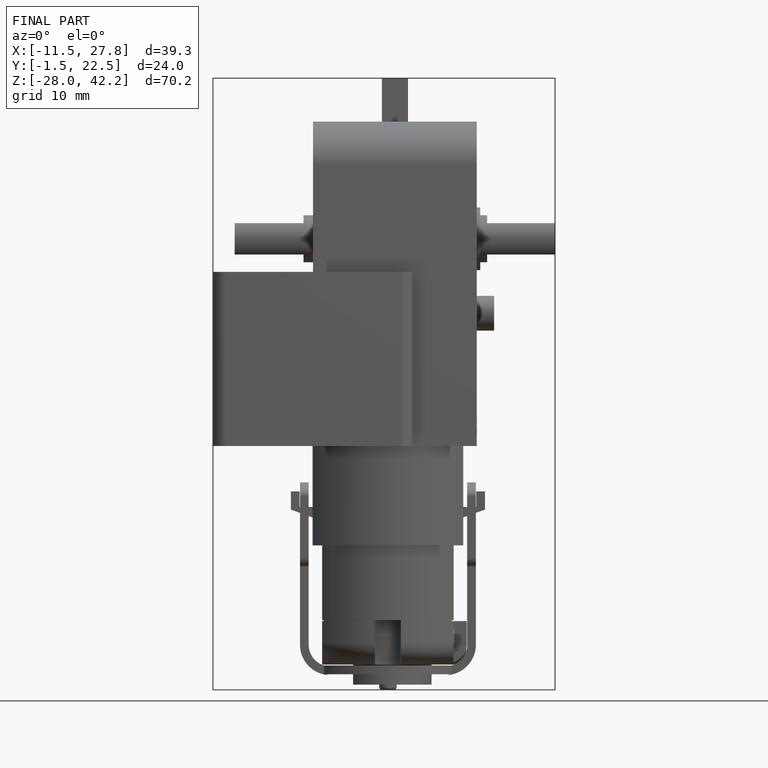
[diagram: finished part — front view with bounding-box wireframe]
